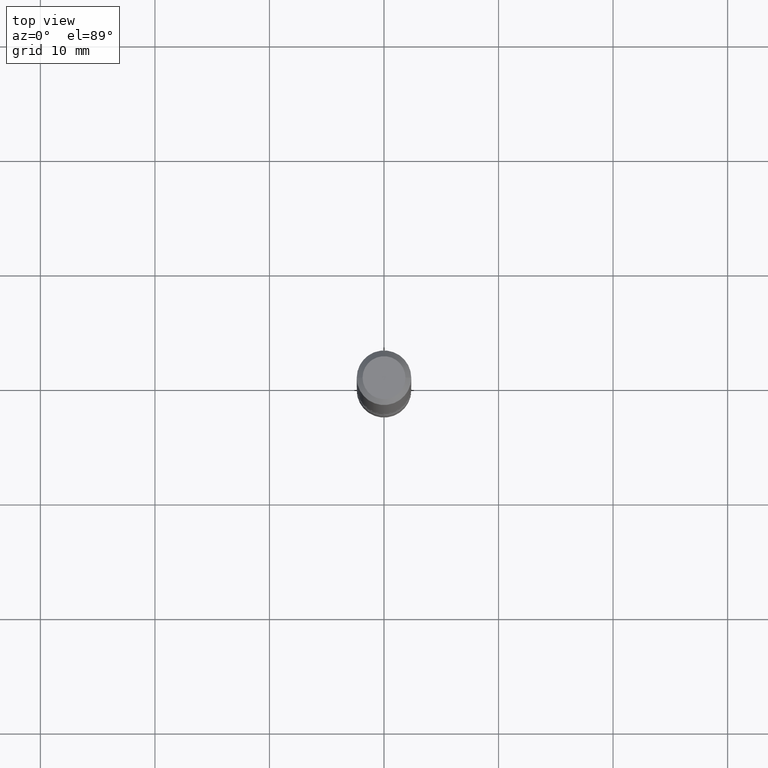
[diagram: clean part render]
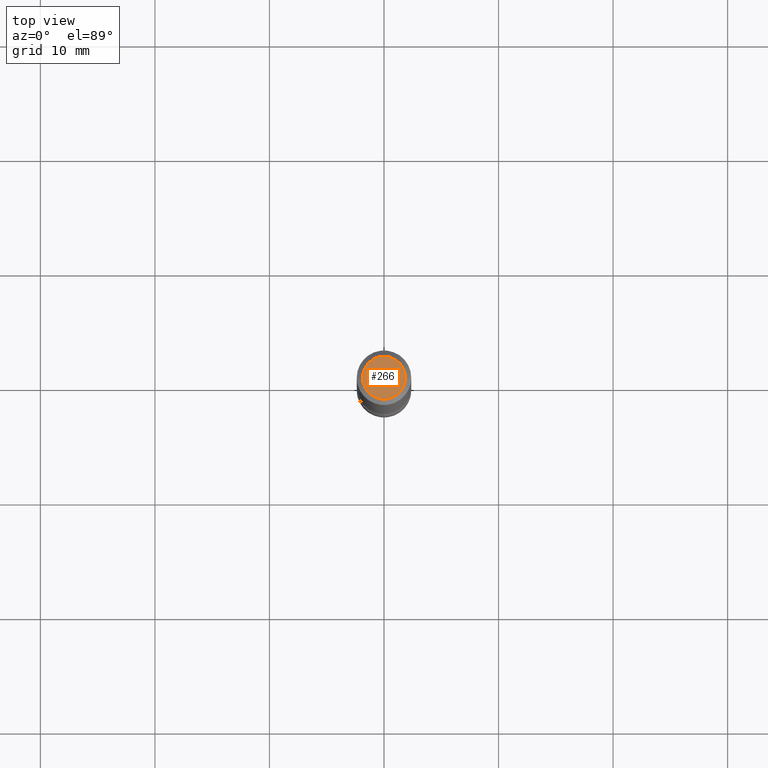
[diagram: same view with one face highlighted and labeled with its STEP entity id]
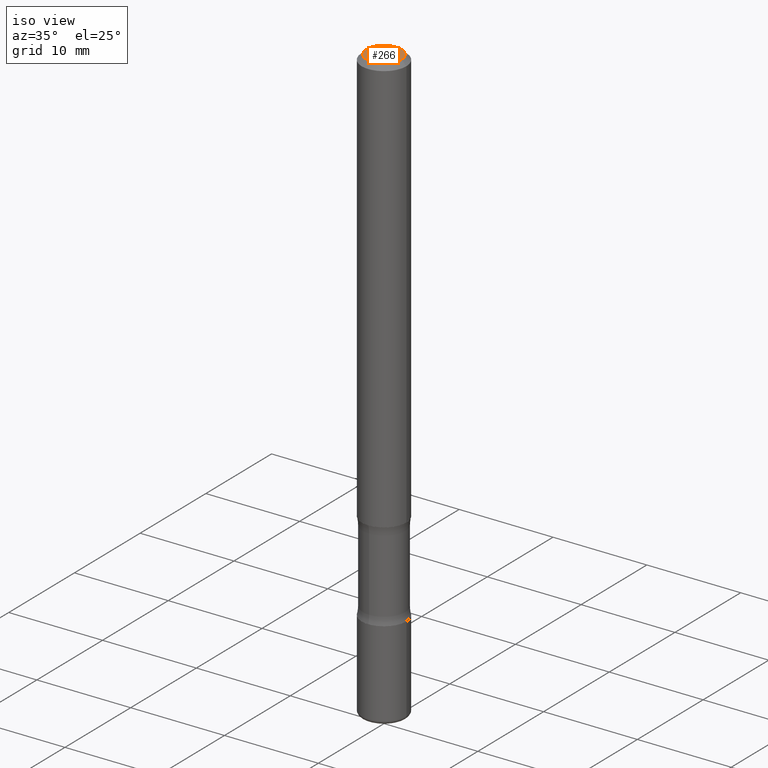
[diagram: same view with one face highlighted and labeled with its STEP entity id]
A machine part, top view. The second image highlights one B-rep face of the part: STEP entity #266.
A second angle (iso view) of the same face is appended — the face is thin or edge-on in the first view.
In plain terms, the highlighted planar face has unit normal (0, -0, -1).
Its self-contained STEP definition (entity closure, byte-faithful):
#11 = DIRECTION ( 'NONE',  ( -1.000000000000000000, 6.982962677686265922E-15, -4.876176775795935793E-29 ) ) ;
#14 = DIRECTION ( 'NONE',  ( 2.438088387897960049E-29, -3.491481338843145188E-15, -1.000000000000000000 ) ) ;
#31 = EDGE_CURVE ( 'NONE', #290, #75, #208, .T. ) ;
#68 = ORIENTED_EDGE ( 'NONE', *, *, #300, .T. ) ;
#75 = VERTEX_POINT ( 'NONE', #416 ) ;
#99 = EDGE_LOOP ( 'NONE', ( #68, #130 ) ) ;
#130 = ORIENTED_EDGE ( 'NONE', *, *, #31, .T. ) ;
#164 = CARTESIAN_POINT ( 'NONE',  ( 0.07374999999999984346, -6.094815207017961198E-16, 3.931526600461598749E-30 ) ) ;
#208 = CIRCLE ( 'NONE', #270, 0.07374999999999984346 ) ;
#252 = CARTESIAN_POINT ( 'NONE',  ( 5.149934974793610063E-16, 0.07374999999999984346, -2.574967487396814399E-16 ) ) ;
#258 = CARTESIAN_POINT ( 'NONE',  ( 0.000000000000000000, 0.000000000000000000, 0.000000000000000000 ) ) ;
#266 = ADVANCED_FACE ( 'NONE', ( #426 ), #341, .F. ) ;
#270 = AXIS2_PLACEMENT_3D ( 'NONE', #360, #455, #557 ) ;
#290 = VERTEX_POINT ( 'NONE', #164 ) ;
#300 = EDGE_CURVE ( 'NONE', #75, #290, #331, .T. ) ;
#331 = CIRCLE ( 'NONE', #403, 0.07374999999999984346 ) ;
#341 = PLANE ( 'NONE',  #395 ) ;
#360 = CARTESIAN_POINT ( 'NONE',  ( 0.000000000000000000, 0.000000000000000000, 0.000000000000000000 ) ) ;
#392 = DIRECTION ( 'NONE',  ( -2.445468806185136597E-29, 3.491481338843145583E-15, 1.000000000000000000 ) ) ;
#395 = AXIS2_PLACEMENT_3D ( 'NONE', #252, #14, #11 ) ;
#403 = AXIS2_PLACEMENT_3D ( 'NONE', #258, #392, #421 ) ;
#416 = CARTESIAN_POINT ( 'NONE',  ( -0.07374999999999984346, 5.499083108677921624E-16, -3.723527850031186263E-30 ) ) ;
#421 = DIRECTION ( 'NONE',  ( 1.000000000000000000, -6.982962677686266711E-15, 4.876176775795935793E-29 ) ) ;
#426 = FACE_OUTER_BOUND ( 'NONE', #99, .T. ) ;
#455 = DIRECTION ( 'NONE',  ( -2.445468806185136597E-29, 3.491481338843145583E-15, 1.000000000000000000 ) ) ;
#557 = DIRECTION ( 'NONE',  ( 1.000000000000000000, -6.982962677686266711E-15, 4.876176775795935793E-29 ) ) ;